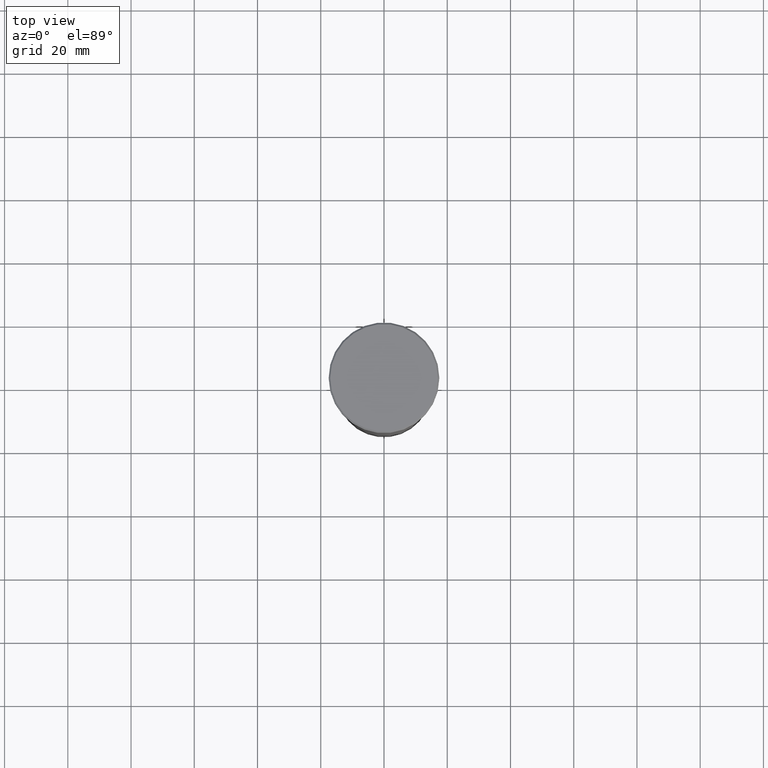
[diagram: clean part render]
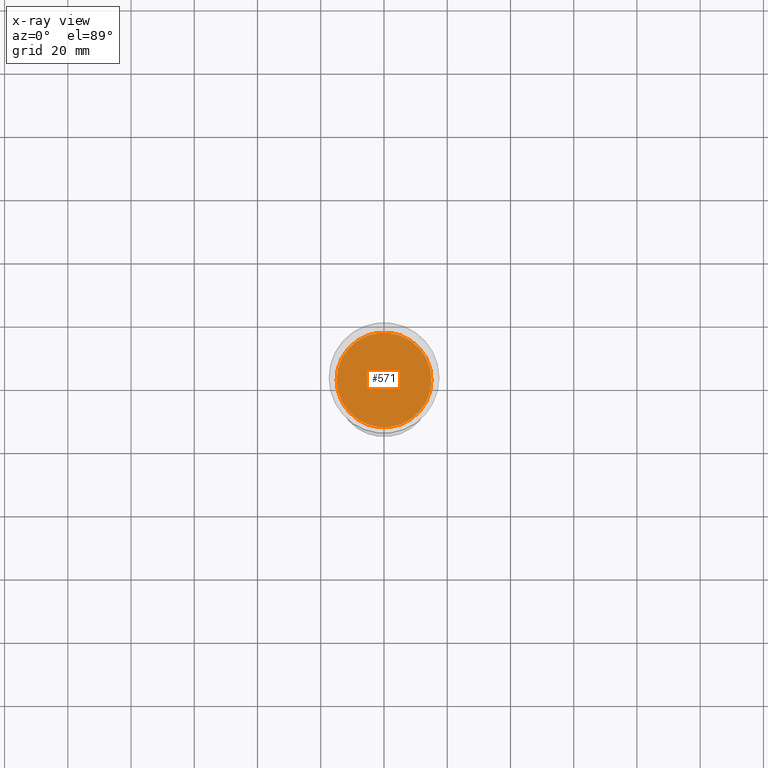
[diagram: x-ray — body ghosted, one internal face saturated and labeled with its STEP entity id]
A machine part, top view, then the same camera in x-ray: the body is ghosted and one INTERNAL B-rep face — a face not visible from any outside direction — is saturated and labeled: STEP entity #571.
In plain terms, the highlighted planar face has unit normal (0, 0, -1).
Its self-contained STEP definition (entity closure, byte-faithful):
#49 = AXIS2_PLACEMENT_3D ( 'NONE', #504, #689, #609 ) ;
#71 = CARTESIAN_POINT ( 'NONE',  ( 15.00000000000000000, 0.000000000000000000, -41.99999999999999289 ) ) ;
#82 = EDGE_CURVE ( 'NONE', #271, #1015, #683, .T. ) ;
#190 = CIRCLE ( 'NONE', #845, 15.00000000000000000 ) ;
#193 = ORIENTED_EDGE ( 'NONE', *, *, #1002, .T. ) ;
#244 = DIRECTION ( 'NONE',  ( 1.000000000000000000, 0.000000000000000000, 0.000000000000000000 ) ) ;
#271 = VERTEX_POINT ( 'NONE', #71 ) ;
#391 = CARTESIAN_POINT ( 'NONE',  ( -15.00000000000000000, 1.836970198721029589E-15, -41.99999999999999289 ) ) ;
#422 = AXIS2_PLACEMENT_3D ( 'NONE', #663, #930, #244 ) ;
#467 = ORIENTED_EDGE ( 'NONE', *, *, #82, .T. ) ;
#477 = DIRECTION ( 'NONE',  ( -0.000000000000000000, -0.000000000000000000, 1.000000000000000000 ) ) ;
#504 = CARTESIAN_POINT ( 'NONE',  ( 0.000000000000000000, 0.000000000000000000, -41.99999999999999289 ) ) ;
#571 = ADVANCED_FACE ( 'NONE', ( #1030 ), #938, .F. ) ;
#609 = DIRECTION ( 'NONE',  ( -1.000000000000000000, 0.000000000000000000, -0.000000000000000000 ) ) ;
#659 = DIRECTION ( 'NONE',  ( 1.000000000000000000, 0.000000000000000000, 0.000000000000000000 ) ) ;
#663 = CARTESIAN_POINT ( 'NONE',  ( 0.000000000000000000, 0.000000000000000000, -41.99999999999999289 ) ) ;
#672 = EDGE_LOOP ( 'NONE', ( #467, #193 ) ) ;
#683 = CIRCLE ( 'NONE', #422, 15.00000000000000000 ) ;
#689 = DIRECTION ( 'NONE',  ( 0.000000000000000000, 0.000000000000000000, -1.000000000000000000 ) ) ;
#845 = AXIS2_PLACEMENT_3D ( 'NONE', #917, #477, #659 ) ;
#917 = CARTESIAN_POINT ( 'NONE',  ( 0.000000000000000000, 0.000000000000000000, -41.99999999999999289 ) ) ;
#930 = DIRECTION ( 'NONE',  ( -0.000000000000000000, -0.000000000000000000, 1.000000000000000000 ) ) ;
#938 = PLANE ( 'NONE',  #49 ) ;
#1002 = EDGE_CURVE ( 'NONE', #1015, #271, #190, .T. ) ;
#1015 = VERTEX_POINT ( 'NONE', #391 ) ;
#1030 = FACE_OUTER_BOUND ( 'NONE', #672, .T. ) ;